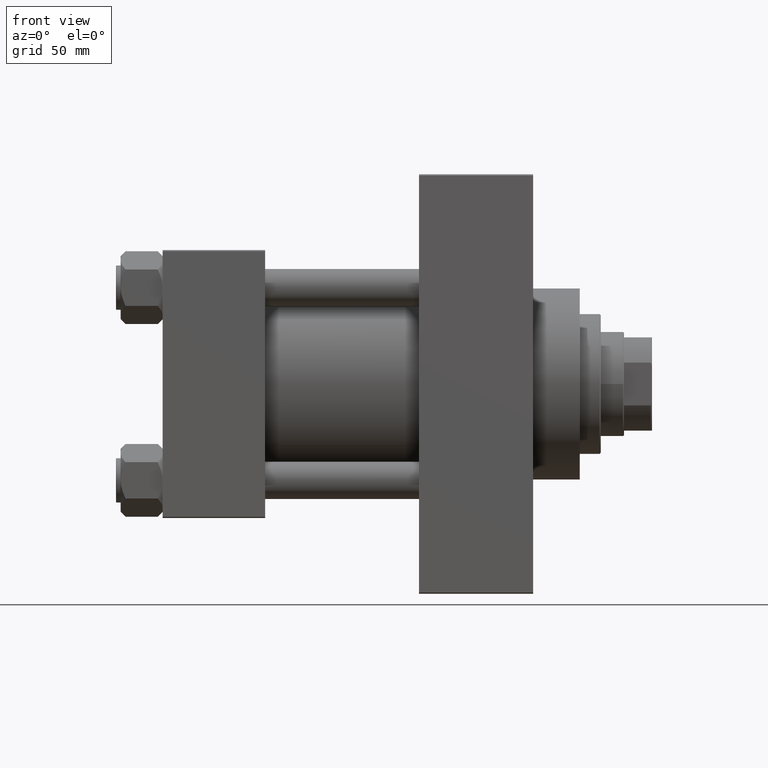
[diagram: clean part render]
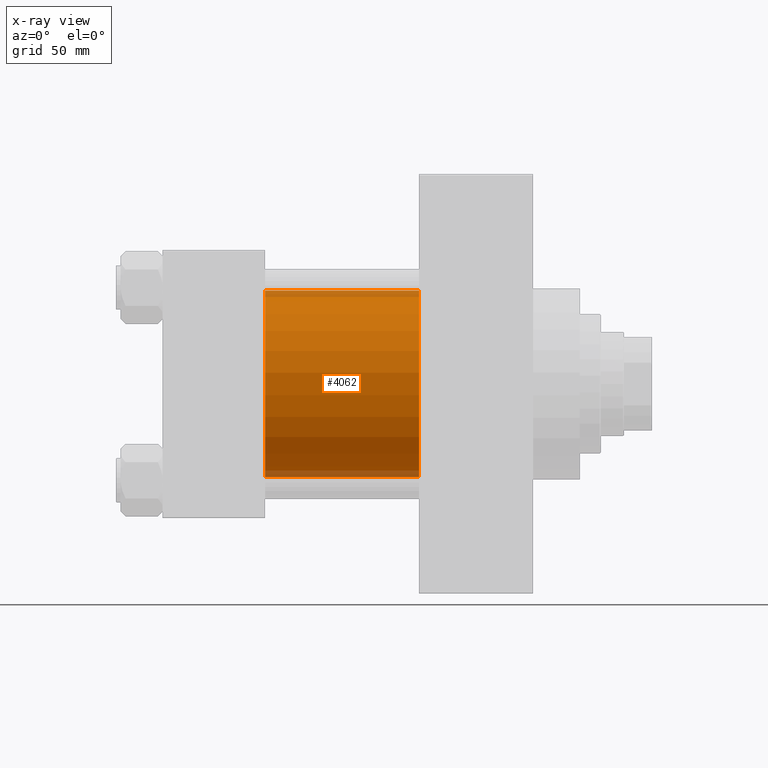
[diagram: x-ray — body ghosted, one internal face saturated and labeled with its STEP entity id]
A machine part, front view, then the same camera in x-ray: the body is ghosted and one INTERNAL B-rep face — a face not visible from any outside direction — is saturated and labeled: STEP entity #4062.
In plain terms, the highlighted cylindrical surface (partial cylindrical patch) has radius 40 mm, axis along (-1, -0, -0).
Its self-contained STEP definition (entity closure, byte-faithful):
#3520 = DIRECTION ( 'NONE',  ( -1.000000000000000000, -0.000000000000000000, -0.000000000000000000 ) ) ;
#3694 = LINE ( 'NONE', #33089, #39876 ) ;
#4062 = ADVANCED_FACE ( 'NONE', ( #7132 ), #21815, .F. ) ;
#6684 = CARTESIAN_POINT ( 'NONE',  ( 44.00000000000000000, -2.602085213965210642E-15, 40.00000000000000000 ) ) ;
#7132 = FACE_OUTER_BOUND ( 'NONE', #44851, .T. ) ;
#10991 = DIRECTION ( 'NONE',  ( -1.000000000000000000, -0.000000000000000000, -0.000000000000000000 ) ) ;
#14252 = EDGE_CURVE ( 'NONE', #14937, #31093, #41715, .T. ) ;
#14937 = VERTEX_POINT ( 'NONE', #21207 ) ;
#15798 = AXIS2_PLACEMENT_3D ( 'NONE', #31394, #28488, #35960 ) ;
#16745 = CARTESIAN_POINT ( 'NONE',  ( 44.00000000000000000, 2.296501982624201990E-15, -40.00000000000000000 ) ) ;
#17227 = DIRECTION ( 'NONE',  ( 0.000000000000000000, 0.000000000000000000, -1.000000000000000000 ) ) ;
#17403 = VERTEX_POINT ( 'NONE', #6684 ) ;
#19365 = AXIS2_PLACEMENT_3D ( 'NONE', #31482, #28328, #17227 ) ;
#19511 = ORIENTED_EDGE ( 'NONE', *, *, #32687, .F. ) ;
#21207 = CARTESIAN_POINT ( 'NONE',  ( 110.0000000000000000, -2.602085213965210642E-15, 40.00000000000000000 ) ) ;
#21815 = CYLINDRICAL_SURFACE ( 'NONE', #38440, 40.00000000000000000 ) ;
#24986 = EDGE_CURVE ( 'NONE', #31093, #45262, #36297, .T. ) ;
#26893 = EDGE_CURVE ( 'NONE', #17403, #45262, #33528, .T. ) ;
#28328 = DIRECTION ( 'NONE',  ( 1.000000000000000000, 0.000000000000000000, 0.000000000000000000 ) ) ;
#28488 = DIRECTION ( 'NONE',  ( 1.000000000000000000, 0.000000000000000000, 0.000000000000000000 ) ) ;
#31093 = VERTEX_POINT ( 'NONE', #35389 ) ;
#31394 = CARTESIAN_POINT ( 'NONE',  ( 44.00000000000000000, -2.602085213965210642E-15, 0.000000000000000000 ) ) ;
#31482 = CARTESIAN_POINT ( 'NONE',  ( 110.0000000000000000, -2.602085213965210642E-15, 0.000000000000000000 ) ) ;
#32687 = EDGE_CURVE ( 'NONE', #14937, #17403, #3694, .T. ) ;
#32825 = ORIENTED_EDGE ( 'NONE', *, *, #14252, .T. ) ;
#32918 = DIRECTION ( 'NONE',  ( 0.000000000000000000, 0.000000000000000000, 1.000000000000000000 ) ) ;
#33089 = CARTESIAN_POINT ( 'NONE',  ( 110.0000000000000000, -2.602085213965210642E-15, 40.00000000000000000 ) ) ;
#33528 = CIRCLE ( 'NONE', #15798, 40.00000000000000000 ) ;
#35389 = CARTESIAN_POINT ( 'NONE',  ( 110.0000000000000000, 2.296501982624201990E-15, -40.00000000000000000 ) ) ;
#35960 = DIRECTION ( 'NONE',  ( 0.000000000000000000, 0.000000000000000000, -1.000000000000000000 ) ) ;
#36297 = LINE ( 'NONE', #40390, #38886 ) ;
#36525 = CARTESIAN_POINT ( 'NONE',  ( 110.0000000000000000, -2.602085213965210642E-15, 0.000000000000000000 ) ) ;
#38440 = AXIS2_PLACEMENT_3D ( 'NONE', #36525, #3520, #32918 ) ;
#38886 = VECTOR ( 'NONE', #10991, 1000.000000000000000 ) ;
#39876 = VECTOR ( 'NONE', #44182, 1000.000000000000000 ) ;
#40390 = CARTESIAN_POINT ( 'NONE',  ( 110.0000000000000000, 2.296501982624201990E-15, -40.00000000000000000 ) ) ;
#41715 = CIRCLE ( 'NONE', #19365, 40.00000000000000000 ) ;
#42156 = ORIENTED_EDGE ( 'NONE', *, *, #26893, .F. ) ;
#44182 = DIRECTION ( 'NONE',  ( -1.000000000000000000, -0.000000000000000000, -0.000000000000000000 ) ) ;
#44851 = EDGE_LOOP ( 'NONE', ( #32825, #45144, #42156, #19511 ) ) ;
#45144 = ORIENTED_EDGE ( 'NONE', *, *, #24986, .T. ) ;
#45262 = VERTEX_POINT ( 'NONE', #16745 ) ;